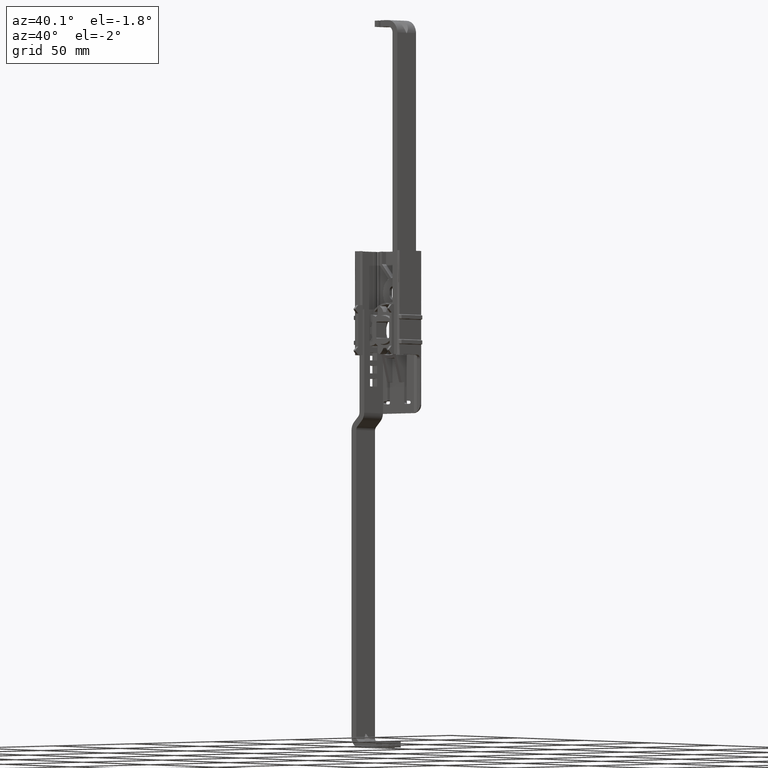
[diagram: clean part render]
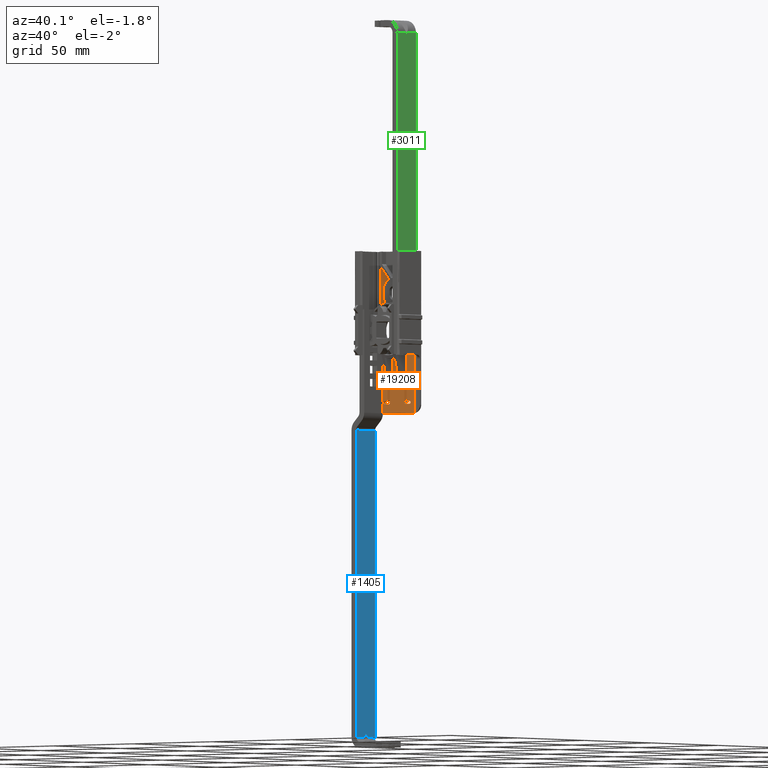
[diagram: same view with three faces highlighted in distinct colors, each labeled with its STEP entity id]
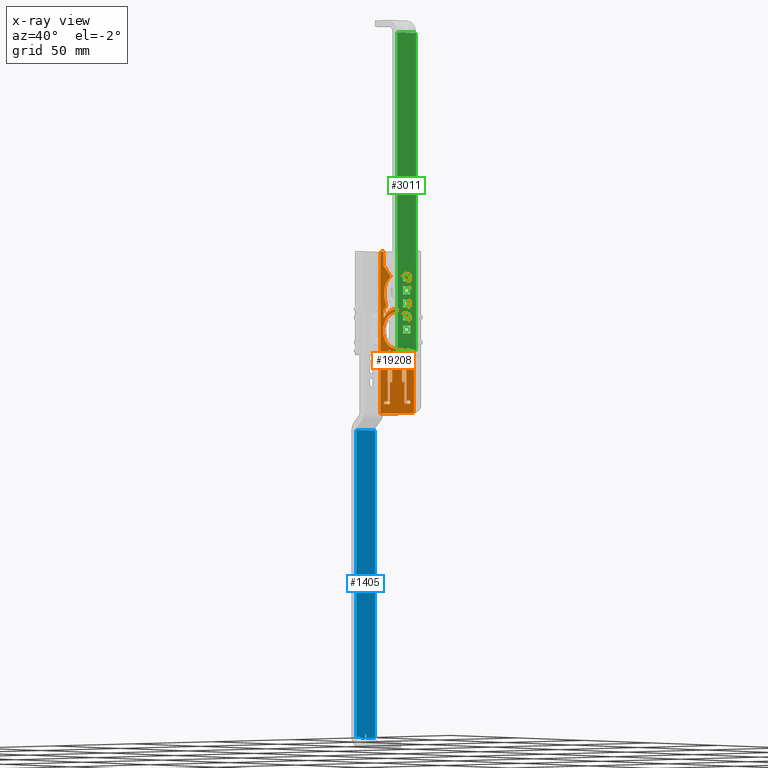
[diagram: x-ray of the same camera — body ghosted, the three highlighted faces saturated]
A machine part, auxiliary view with three faces highlighted in distinct colors.
The next image is the same camera in x-ray (body ghosted, the three faces saturated) — at least one of them is partly hidden behind the body in this view.
Their STEP definitions:

[orange] entity #19208 — the highlighted face is a freeform B-spline surface patch.
#7499=CARTESIAN_POINT('',(-8.883399705875526,7.000000332482159,-0.543332003153308));
#7500=VERTEX_POINT('',#7499);
#7506=CARTESIAN_POINT('',(0.0,7.000000332482160,-8.900000000000000));
#7507=VERTEX_POINT('',#7506);
#7508=CARTESIAN_POINT('',(0.0,7.000000332482160,-8.900000000000000));
#7509=CARTESIAN_POINT('',(-8.372283994239728,7.000000332482161,-8.900000000000000));
#7510=CARTESIAN_POINT('',(-8.883399705875528,7.000000332482161,-0.543332003153305));
#7518=(BOUNDED_CURVE()B_SPLINE_CURVE(2,(#7508,#7509,#7510),.UNSPECIFIED.,.F.,.U.)B_SPLINE_CURVE_WITH_KNOTS((3,3),(0.500000000000000,0.739332962216852),.UNSPECIFIED.)CURVE()GEOMETRIC_REPRESENTATION_ITEM()RATIONAL_B_SPLINE_CURVE((1.0,0.719603993312591,0.976072041619373))REPRESENTATION_ITEM(''));
#7519=EDGE_CURVE('',#7507,#7500,#7518,.T.);
#7521=CARTESIAN_POINT('',(8.883399705875526,7.000000332482159,0.543332003153306));
#7522=VERTEX_POINT('',#7521);
#7523=CARTESIAN_POINT('',(8.883399705875528,7.000000332482161,0.543332003153305));
#7524=CARTESIAN_POINT('',(8.900000000000000,7.000000332482161,0.271919594005793));
#7525=CARTESIAN_POINT('',(8.900000000000000,7.000000332482160,0.0));
#7526=CARTESIAN_POINT('',(8.900000000000000,7.000000332482161,-8.900000000000000));
#7527=CARTESIAN_POINT('',(0.0,7.000000332482160,-8.900000000000000));
#7535=(BOUNDED_CURVE()B_SPLINE_CURVE(2,(#7523,#7524,#7525,#7526,#7527),.UNSPECIFIED.,.F.,.U.)B_SPLINE_CURVE_WITH_KNOTS((3,2,3),(0.239332962216852,0.250000000000000,0.500000000000000),.UNSPECIFIED.)CURVE()GEOMETRIC_REPRESENTATION_ITEM()RATIONAL_B_SPLINE_CURVE((0.976072041619373,0.987502787873957,1.0,0.707106781186548,1.0))REPRESENTATION_ITEM(''));
#7536=EDGE_CURVE('',#7522,#7507,#7535,.T.);
#7580=CARTESIAN_POINT('',(0.0,7.000000332482160,8.900000000000000));
#7581=VERTEX_POINT('',#7580);
#7582=CARTESIAN_POINT('',(0.0,7.000000332482160,8.900000000000000));
#7583=CARTESIAN_POINT('',(8.372283994239728,7.000000332482161,8.900000000000000));
#7584=CARTESIAN_POINT('',(8.883399705875528,7.000000332482161,0.543332003153305));
#7592=(BOUNDED_CURVE()B_SPLINE_CURVE(2,(#7582,#7583,#7584),.UNSPECIFIED.,.F.,.U.)B_SPLINE_CURVE_WITH_KNOTS((3,3),(0.0,0.239332962216852),.UNSPECIFIED.)CURVE()GEOMETRIC_REPRESENTATION_ITEM()RATIONAL_B_SPLINE_CURVE((1.0,0.719603993312591,0.976072041619373))REPRESENTATION_ITEM(''));
#7593=EDGE_CURVE('',#7581,#7522,#7592,.T.);
#7595=CARTESIAN_POINT('',(-8.883399705875529,7.000000332482160,-0.543332003153311));
#7596=CARTESIAN_POINT('',(-8.900000000000000,7.000000332482160,-0.271919594005796));
#7597=CARTESIAN_POINT('',(-8.900000000000000,7.000000332482160,0.0));
#7598=CARTESIAN_POINT('',(-8.900000000000000,7.000000332482161,8.900000000000000));
#7599=CARTESIAN_POINT('',(0.0,7.000000332482160,8.900000000000000));
#7607=(BOUNDED_CURVE()B_SPLINE_CURVE(2,(#7595,#7596,#7597,#7598,#7599),.UNSPECIFIED.,.F.,.U.)B_SPLINE_CURVE_WITH_KNOTS((3,2,3),(0.739332962216852,0.750000000000000,1.0),.UNSPECIFIED.)CURVE()GEOMETRIC_REPRESENTATION_ITEM()RATIONAL_B_SPLINE_CURVE((0.976072041619373,0.987502787873956,1.0,0.707106781186548,1.0))REPRESENTATION_ITEM(''));
#7608=EDGE_CURVE('',#7500,#7581,#7607,.T.);
#8010=CARTESIAN_POINT('',(-8.500000403728791,7.000000332482160,5.992495756123081));
#8011=VERTEX_POINT('',#8010);
#8045=CARTESIAN_POINT('',(8.500000403728802,7.000000332482160,5.992495756123050));
#8046=VERTEX_POINT('',#8045);
#8047=CARTESIAN_POINT('',(-8.500000403728791,7.000000332482160,5.992495756123081));
#8048=CARTESIAN_POINT('',(-7.903130408093733,7.000000332482145,6.839849406914008));
#8049=CARTESIAN_POINT('',(-6.453202528302722,7.000000332482186,8.353626904367136));
#8050=CARTESIAN_POINT('',(-3.660839477028171,7.000000332482141,9.909764618581953));
#8051=CARTESIAN_POINT('',(-0.885212463504522,7.000000332482155,10.477364162254361));
#8052=CARTESIAN_POINT('',(1.610647369218091,7.000000332482172,10.346201468582610));
#8053=CARTESIAN_POINT('',(3.426218055508065,7.000000332482153,9.874650222105172));
#8054=CARTESIAN_POINT('',(5.223586219305586,7.000000332482177,9.058975570708380));
#8055=CARTESIAN_POINT('',(6.938792526715250,7.000000332482101,7.871850391658840));
#8056=CARTESIAN_POINT('',(8.022371457679862,7.000000332482284,6.670266345069343));
#8057=CARTESIAN_POINT('',(8.500000403728802,7.000000332482160,5.992495756123050));
#8058=B_SPLINE_CURVE_WITH_KNOTS('',3,(#8047,#8048,#8049,#8050,#8051,#8052,#8053,#8054,#8055,#8056,#8057),.UNSPECIFIED.,.F.,.U.,(4,1,1,1,1,1,1,1,4),(0.000000736274085,3.109310924812938,6.218780785937293,9.483637908824477,11.504584140355270,13.681250425957860,15.080490926038459,17.412565028662851,19.900022516326821),.UNSPECIFIED.);
#8059=EDGE_CURVE('',#8011,#8046,#8058,.T.);
#9138=CARTESIAN_POINT('',(-8.500000403728791,7.000000332482160,10.099010332132220));
#9139=VERTEX_POINT('',#9138);
#9145=CARTESIAN_POINT('',(-8.500000403728791,7.000000332482160,5.992495756123081));
#9146=CARTESIAN_POINT('',(-8.500000403728791,7.000000332482160,10.099010332132220));
#9147=QUASI_UNIFORM_CURVE('',1,(#9145,#9146),.UNSPECIFIED.,.F.,.U.);
#9148=EDGE_CURVE('',#8011,#9139,#9147,.T.);
#9159=CARTESIAN_POINT('',(8.500000403728812,7.000000332482160,10.099010332132661));
#9160=VERTEX_POINT('',#9159);
#9161=CARTESIAN_POINT('',(8.500000403728812,7.000000332482160,10.099010332132661));
#9162=CARTESIAN_POINT('',(8.500000403728802,7.000000332482160,5.992495756123050));
#9163=QUASI_UNIFORM_CURVE('',1,(#9161,#9162),.UNSPECIFIED.,.F.,.U.);
#9164=EDGE_CURVE('',#9160,#8046,#9163,.T.);
#9197=CARTESIAN_POINT('',(-8.500000403728400,7.000000332482160,31.454046142592400));
#9198=VERTEX_POINT('',#9197);
#9204=CARTESIAN_POINT('',(-3.907428746374550,7.000000332482160,25.980832370689001));
#9205=VERTEX_POINT('',#9204);
#9206=CARTESIAN_POINT('',(-8.500000403728400,7.000000332482160,31.454046142592400));
#9207=CARTESIAN_POINT('',(-3.907428746374550,7.000000332482160,25.980832370689001));
#9208=QUASI_UNIFORM_CURVE('',1,(#9206,#9207),.UNSPECIFIED.,.F.,.U.);
#9209=EDGE_CURVE('',#9198,#9205,#9208,.T.);
#9226=CARTESIAN_POINT('',(-8.500000403728400,7.000000332482160,38.000001804903100));
#9227=VERTEX_POINT('',#9226);
#9228=CARTESIAN_POINT('',(-8.500000403728400,7.000000332482160,38.000001804903100));
#9229=CARTESIAN_POINT('',(-8.500000403728400,7.000000332482160,31.454046142592400));
#9230=QUASI_UNIFORM_CURVE('',1,(#9228,#9229),.UNSPECIFIED.,.F.,.U.);
#9231=EDGE_CURVE('',#9227,#9198,#9230,.T.);
#9322=CARTESIAN_POINT('',(8.500000403728411,7.000000332482160,31.454046142592400));
#9323=VERTEX_POINT('',#9322);
#9324=CARTESIAN_POINT('',(8.500000403728411,7.000000332482160,38.000001804903100));
#9325=VERTEX_POINT('',#9324);
#9326=CARTESIAN_POINT('',(8.500000403728411,7.000000332482160,31.454046142592400));
#9327=CARTESIAN_POINT('',(8.500000403728411,7.000000332482160,38.000001804903100));
#9328=QUASI_UNIFORM_CURVE('',1,(#9326,#9327),.UNSPECIFIED.,.F.,.U.);
#9329=EDGE_CURVE('',#9323,#9325,#9328,.T.);
#9394=CARTESIAN_POINT('',(3.907428746374559,7.000000332482160,25.980832370689001));
#9395=VERTEX_POINT('',#9394);
#9396=CARTESIAN_POINT('',(3.907428746374559,7.000000332482160,25.980832370689001));
#9397=CARTESIAN_POINT('',(8.500000403728411,7.000000332482160,31.454046142592400));
#9398=QUASI_UNIFORM_CURVE('',1,(#9396,#9397),.UNSPECIFIED.,.F.,.U.);
#9399=EDGE_CURVE('',#9395,#9323,#9398,.T.);
#9458=CARTESIAN_POINT('',(-8.000000379979579,7.000000332482160,17.000000807456651));
#9459=VERTEX_POINT('',#9458);
#9472=CARTESIAN_POINT('',(-8.000000379979579,7.000000332482160,19.000000902451450));
#9473=VERTEX_POINT('',#9472);
#9479=CARTESIAN_POINT('',(-8.000000379979579,7.000000332482160,17.000000807456651));
#9480=CARTESIAN_POINT('',(-8.000000379979579,7.000000332482160,19.000000902451450));
#9481=QUASI_UNIFORM_CURVE('',1,(#9479,#9480),.UNSPECIFIED.,.F.,.U.);
#9482=EDGE_CURVE('',#9459,#9473,#9481,.T.);
#9502=CARTESIAN_POINT('',(-8.000000379979579,7.000000332482160,19.000000902451450));
#9503=CARTESIAN_POINT('',(-8.000000379979989,7.000000332482160,23.690069045627766));
#9504=CARTESIAN_POINT('',(-3.907428706193680,7.000000332482160,25.980832298903710));
#9512=(BOUNDED_CURVE()B_SPLINE_CURVE(2,(#9502,#9503,#9504),.UNSPECIFIED.,.F.,.U.)CURVE()GEOMETRIC_REPRESENTATION_ITEM()QUASI_UNIFORM_CURVE()RATIONAL_B_SPLINE_CURVE((1.0,0.862678551105531,1.0))REPRESENTATION_ITEM(''));
#9513=EDGE_CURVE('',#9473,#9205,#9512,.T.);
#9548=CARTESIAN_POINT('',(-7.097949815014121,7.000000332482160,13.309592360791600));
#9549=VERTEX_POINT('',#9548);
#9571=CARTESIAN_POINT('',(-7.097949815014132,7.000000332482160,13.309592360791591));
#9572=CARTESIAN_POINT('',(-8.000000379979719,7.000000332482160,15.044551982000169));
#9573=CARTESIAN_POINT('',(-8.000000379979719,7.000000332482160,17.000000807456601));
#9581=(BOUNDED_CURVE()B_SPLINE_CURVE(2,(#9571,#9572,#9573),.UNSPECIFIED.,.F.,.U.)CURVE()GEOMETRIC_REPRESENTATION_ITEM()QUASI_UNIFORM_CURVE()RATIONAL_B_SPLINE_CURVE((1.0,0.971401998334093,1.0))REPRESENTATION_ITEM(''));
#9582=EDGE_CURVE('',#9549,#9459,#9581,.T.);
#9592=CARTESIAN_POINT('',(8.000000379979520,7.000000332482160,17.000000807456601));
#9593=VERTEX_POINT('',#9592);
#9601=CARTESIAN_POINT('',(8.000000379979710,7.000000332482160,19.000000902451450));
#9602=VERTEX_POINT('',#9601);
#9603=CARTESIAN_POINT('',(8.000000379979710,7.000000332482160,19.000000902451450));
#9604=CARTESIAN_POINT('',(8.000000379979520,7.000000332482160,17.000000807456601));
#9605=QUASI_UNIFORM_CURVE('',1,(#9603,#9604),.UNSPECIFIED.,.F.,.U.);
#9606=EDGE_CURVE('',#9602,#9593,#9605,.T.);
#9637=CARTESIAN_POINT('',(-7.808463576841071,7.000000332482160,10.642739925463600));
#9638=VERTEX_POINT('',#9637);
#9682=CARTESIAN_POINT('',(-7.097949815014125,7.000000332482160,13.309592360791600));
#9683=CARTESIAN_POINT('',(-6.395715602484520,7.000000332482160,11.694425029540891));
#9684=CARTESIAN_POINT('',(-7.808463576841070,7.000000332482160,10.642739925463600));
#9692=(BOUNDED_CURVE()B_SPLINE_CURVE(2,(#9682,#9683,#9684),.UNSPECIFIED.,.F.,.U.)CURVE()GEOMETRIC_REPRESENTATION_ITEM()QUASI_UNIFORM_CURVE()RATIONAL_B_SPLINE_CURVE((1.0,0.783513080592671,1.0))REPRESENTATION_ITEM(''));
#9693=EDGE_CURVE('',#9549,#9638,#9692,.T.);
#9712=CARTESIAN_POINT('',(7.097908734437640,7.000000332482160,13.309497867794960));
#9713=VERTEX_POINT('',#9712);
#9725=CARTESIAN_POINT('',(8.000000379979520,7.000000332482160,17.000000807456601));
#9726=CARTESIAN_POINT('',(8.000003548259221,7.000000332482160,15.044495869587905));
#9727=CARTESIAN_POINT('',(7.097908734437640,7.000000332482160,13.309497867794960));
#9735=(BOUNDED_CURVE()B_SPLINE_CURVE(2,(#9725,#9726,#9727),.UNSPECIFIED.,.F.,.U.)CURVE()GEOMETRIC_REPRESENTATION_ITEM()QUASI_UNIFORM_CURVE()RATIONAL_B_SPLINE_CURVE((1.0,0.971400472923823,1.0))REPRESENTATION_ITEM(''));
#9736=EDGE_CURVE('',#9593,#9713,#9735,.T.);
#9771=CARTESIAN_POINT('',(7.808463576849401,7.000000332482160,10.642739925457480));
#9772=VERTEX_POINT('',#9771);
#9800=CARTESIAN_POINT('',(7.808463576849405,7.000000332482160,10.642739925457480));
#9801=CARTESIAN_POINT('',(6.395782917492917,7.000000332482160,11.694374918546524));
#9802=CARTESIAN_POINT('',(7.097908734437635,7.000000332482160,13.309497867794960));
#9810=(BOUNDED_CURVE()B_SPLINE_CURVE(2,(#9800,#9801,#9802),.UNSPECIFIED.,.F.,.U.)CURVE()GEOMETRIC_REPRESENTATION_ITEM()QUASI_UNIFORM_CURVE()RATIONAL_B_SPLINE_CURVE((1.0,0.783527495207334,1.0))REPRESENTATION_ITEM(''));
#9811=EDGE_CURVE('',#9772,#9713,#9810,.T.);
#16375=CARTESIAN_POINT('',(5.250000249361620,7.000000332482160,-35.500001686159600));
#16376=VERTEX_POINT('',#16375);
#16377=CARTESIAN_POINT('',(4.500000213738530,7.000000332482160,-34.750001650536497));
#16378=VERTEX_POINT('',#16377);
#16379=CARTESIAN_POINT('',(5.250000249361620,7.000000332482160,-35.500001686159592));
#16380=CARTESIAN_POINT('',(4.500000213738531,7.000000332482161,-35.500001686159592));
#16381=CARTESIAN_POINT('',(4.500000213738531,7.000000332482160,-34.750001650536497));
#16389=(BOUNDED_CURVE()B_SPLINE_CURVE(2,(#16379,#16380,#16381),.UNSPECIFIED.,.F.,.U.)CURVE()GEOMETRIC_REPRESENTATION_ITEM()QUASI_UNIFORM_CURVE()RATIONAL_B_SPLINE_CURVE((1.0,0.707106781186548,1.0))REPRESENTATION_ITEM(''));
#16390=EDGE_CURVE('',#16376,#16378,#16389,.T.);
#16427=CARTESIAN_POINT('',(7.750000368105240,7.000000332482160,-35.500001686159600));
#16428=VERTEX_POINT('',#16427);
#16429=CARTESIAN_POINT('',(7.750000368105240,7.000000332482160,-35.500001686159600));
#16430=CARTESIAN_POINT('',(5.250000249361620,7.000000332482160,-35.500001686159600));
#16431=QUASI_UNIFORM_CURVE('',1,(#16429,#16430),.UNSPECIFIED.,.F.,.U.);
#16432=EDGE_CURVE('',#16428,#16376,#16431,.T.);
#16468=CARTESIAN_POINT('',(7.750000368105240,7.000000332482160,-34.000001614913401));
#16469=VERTEX_POINT('',#16468);
#16470=CARTESIAN_POINT('',(7.750000368105240,7.000000332482160,-34.000001614913401));
#16471=CARTESIAN_POINT('',(7.922016314447842,7.000000332482154,-33.999038790105992));
#16472=CARTESIAN_POINT('',(8.227638122453492,7.000000332482187,-34.110172796651213));
#16473=CARTESIAN_POINT('',(8.469254105309748,7.000000332482125,-34.453489819916491));
#16474=CARTESIAN_POINT('',(8.516702017957762,7.000000332482213,-34.775373531171077));
#16475=CARTESIAN_POINT('',(8.456731480601974,7.000000332482117,-35.042640479318123));
#16476=CARTESIAN_POINT('',(8.303492498888382,7.000000332482163,-35.284815640054539));
#16477=CARTESIAN_POINT('',(8.056787609957398,7.000000332482205,-35.458546269050409));
#16478=CARTESIAN_POINT('',(7.848159563706859,7.000000332482136,-35.500071308349128));
#16479=CARTESIAN_POINT('',(7.750000368105240,7.000000332482160,-35.500001686159600));
#16480=B_SPLINE_CURVE_WITH_KNOTS('',3,(#16470,#16471,#16472,#16473,#16474,#16475,#16476,#16477,#16478,#16479),.UNSPECIFIED.,.F.,.U.,(4,1,1,1,1,1,1,4),(0.000005210018345,0.515472367024620,0.920630475908721,1.214844803583242,1.472732354879991,1.730498029057112,2.061916734349529,2.356430949661646),.UNSPECIFIED.);
#16481=EDGE_CURVE('',#16469,#16428,#16480,.T.);
#16512=CARTESIAN_POINT('',(6.500000308733370,7.000000332482160,-34.000001614913351));
#16513=VERTEX_POINT('',#16512);
#16514=CARTESIAN_POINT('',(6.500000308733370,7.000000332482160,-34.000001614913351));
#16515=CARTESIAN_POINT('',(7.750000368105240,7.000000332482160,-34.000001614913401));
#16516=QUASI_UNIFORM_CURVE('',1,(#16514,#16515),.UNSPECIFIED.,.F.,.U.);
#16517=EDGE_CURVE('',#16513,#16469,#16516,.T.);
#16549=CARTESIAN_POINT('',(6.000000284984700,7.000000332482160,-33.500001591164597));
#16550=VERTEX_POINT('',#16549);
#16551=CARTESIAN_POINT('',(6.500000308733370,7.000000332482160,-34.000001614913323));
#16552=CARTESIAN_POINT('',(6.000000284984709,7.000000332482161,-34.000001614913266));
#16553=CARTESIAN_POINT('',(6.000000284984709,7.000000332482160,-33.500001591164597));
#16561=(BOUNDED_CURVE()B_SPLINE_CURVE(2,(#16551,#16552,#16553),.UNSPECIFIED.,.F.,.U.)CURVE()GEOMETRIC_REPRESENTATION_ITEM()QUASI_UNIFORM_CURVE()RATIONAL_B_SPLINE_CURVE((1.0,0.707106781186590,1.0))REPRESENTATION_ITEM(''));
#16562=EDGE_CURVE('',#16513,#16550,#16561,.T.);
#16593=CARTESIAN_POINT('',(6.000000284984640,7.000000332482160,-10.467091783660241));
#16594=VERTEX_POINT('',#16593);
#16595=CARTESIAN_POINT('',(6.000000284984640,7.000000332482160,-10.467091783660241));
#16596=CARTESIAN_POINT('',(6.000000284984700,7.000000332482160,-33.500001591164597));
#16597=QUASI_UNIFORM_CURVE('',1,(#16595,#16596),.UNSPECIFIED.,.F.,.U.);
#16598=EDGE_CURVE('',#16594,#16550,#16597,.T.);
#16630=CARTESIAN_POINT('',(4.568965734255530,7.000000332482160,-9.564756285072079));
#16631=VERTEX_POINT('',#16630);
#16632=CARTESIAN_POINT('',(4.568965734255530,7.000000332482160,-9.564756285072079));
#16633=CARTESIAN_POINT('',(4.758379375183111,7.000000332482167,-9.473352697693594));
#16634=CARTESIAN_POINT('',(5.086301765870926,7.000000332482161,-9.431676168782225));
#16635=CARTESIAN_POINT('',(5.547377747487700,7.000000332482163,-9.595921214829094));
#16636=CARTESIAN_POINT('',(5.895649479159404,7.000000332482166,-9.921496823167578));
#16637=CARTESIAN_POINT('',(6.000608225865745,7.000000332482165,-10.277916936711909));
#16638=CARTESIAN_POINT('',(6.000000284984640,7.000000332482160,-10.467091783660241));
#16639=B_SPLINE_CURVE_WITH_KNOTS('',3,(#16632,#16633,#16634,#16635,#16636,#16637,#16638),.UNSPECIFIED.,.F.,.U.,(4,1,1,1,4),(0.000001669123767,0.630286701944944,0.945396178924051,1.449544952708700,2.016768427385419),.UNSPECIFIED.);
#16640=EDGE_CURVE('',#16631,#16594,#16639,.T.);
#16677=CARTESIAN_POINT('',(-4.568965734254590,7.000000332482160,-9.564756285069009));
#16678=VERTEX_POINT('',#16677);
#16679=CARTESIAN_POINT('',(4.568965734255530,7.000000332482160,-9.564756285072077));
#16680=CARTESIAN_POINT('',(-2.619432E-013,7.000000332482160,-11.747294685280261));
#16681=CARTESIAN_POINT('',(-4.568965734255957,7.000000332482160,-9.564756285071875));
#16689=(BOUNDED_CURVE()B_SPLINE_CURVE(2,(#16679,#16680,#16681),.UNSPECIFIED.,.F.,.U.)CURVE()GEOMETRIC_REPRESENTATION_ITEM()QUASI_UNIFORM_CURVE()RATIONAL_B_SPLINE_CURVE((1.0,0.902335455733064,1.0))REPRESENTATION_ITEM(''));
#16690=EDGE_CURVE('',#16631,#16678,#16689,.T.);
#16730=CARTESIAN_POINT('',(-6.000000284984650,7.000000332482160,-10.467091783660241));
#16731=VERTEX_POINT('',#16730);
#16732=CARTESIAN_POINT('',(-6.000000284984650,7.000000332482160,-10.467091783660241));
#16733=CARTESIAN_POINT('',(-6.000854857528127,7.000000332482158,-10.256770468466540));
#16734=CARTESIAN_POINT('',(-5.897070544832453,7.000000332482167,-9.942905377615888));
#16735=CARTESIAN_POINT('',(-5.580231507648961,7.000000332482153,-9.627920221723151));
#16736=CARTESIAN_POINT('',(-5.289679482080802,7.000000332482185,-9.492314161626322));
#16737=CARTESIAN_POINT('',(-4.932357171926744,7.000000332482110,-9.448692969709152));
#16738=CARTESIAN_POINT('',(-4.701577362800465,7.000000332482203,-9.501177932582749));
#16739=CARTESIAN_POINT('',(-4.568965734254590,7.000000332482160,-9.564756285069009));
#16740=B_SPLINE_CURVE_WITH_KNOTS('',3,(#16732,#16733,#16734,#16735,#16736,#16737,#16738,#16739),.UNSPECIFIED.,.F.,.U.,(4,1,1,1,1,4),(0.000001669124081,0.630286701945362,0.945396178924532,1.323443453017023,1.575609053781988,2.016768427386025),.UNSPECIFIED.);
#16741=EDGE_CURVE('',#16731,#16678,#16740,.T.);
#16770=CARTESIAN_POINT('',(-6.000000284984760,7.000000332482160,-33.500001591164647));
#16771=VERTEX_POINT('',#16770);
#16772=CARTESIAN_POINT('',(-6.000000284984760,7.000000332482160,-33.500001591164647));
#16773=CARTESIAN_POINT('',(-6.000000284984650,7.000000332482160,-10.467091783660241));
#16774=QUASI_UNIFORM_CURVE('',1,(#16772,#16773),.UNSPECIFIED.,.F.,.U.);
#16775=EDGE_CURVE('',#16771,#16731,#16774,.T.);
#16807=CARTESIAN_POINT('',(-6.500000308733500,7.000000332482160,-34.000001614913401));
#16808=VERTEX_POINT('',#16807);
#16809=CARTESIAN_POINT('',(-6.000000284984760,7.000000332482160,-33.500001591164647));
#16810=CARTESIAN_POINT('',(-6.000000284984815,7.000000332482159,-34.000001614913330));
#16811=CARTESIAN_POINT('',(-6.500000308733500,7.000000332482160,-34.000001614913337));
#16819=(BOUNDED_CURVE()B_SPLINE_CURVE(2,(#16809,#16810,#16811),.UNSPECIFIED.,.F.,.U.)CURVE()GEOMETRIC_REPRESENTATION_ITEM()QUASI_UNIFORM_CURVE()RATIONAL_B_SPLINE_CURVE((1.0,0.707106781186587,1.0))REPRESENTATION_ITEM(''));
#16820=EDGE_CURVE('',#16771,#16808,#16819,.T.);
#16851=CARTESIAN_POINT('',(-7.750000368105250,7.000000332482160,-34.000001614913401));
#16852=VERTEX_POINT('',#16851);
#16853=CARTESIAN_POINT('',(-7.750000368105250,7.000000332482160,-34.000001614913401));
#16854=CARTESIAN_POINT('',(-6.500000308733500,7.000000332482160,-34.000001614913401));
#16855=QUASI_UNIFORM_CURVE('',1,(#16853,#16854),.UNSPECIFIED.,.F.,.U.);
#16856=EDGE_CURVE('',#16852,#16808,#16855,.T.);
#16892=CARTESIAN_POINT('',(-7.750000368105250,7.000000332482160,-35.500001686159500));
#16893=VERTEX_POINT('',#16892);
#16894=CARTESIAN_POINT('',(-7.750000368105250,7.000000332482160,-35.500001686159500));
#16895=CARTESIAN_POINT('',(-7.835868854343746,7.000000332482159,-35.500030532484139));
#16896=CARTESIAN_POINT('',(-8.032285726939000,7.000000332482165,-35.466023082563638));
#16897=CARTESIAN_POINT('',(-8.265955152901011,7.000000332482149,-35.318051071603158));
#16898=CARTESIAN_POINT('',(-8.428499012983018,7.000000332482194,-35.098694144594283));
#16899=CARTESIAN_POINT('',(-8.510528339988380,7.000000332482106,-34.850437786143637));
#16900=CARTESIAN_POINT('',(-8.494314271925706,7.000000332482195,-34.512912499910883));
#16901=CARTESIAN_POINT('',(-8.264168445400603,7.000000332482078,-34.128205609246329));
#16902=CARTESIAN_POINT('',(-7.934299682606909,7.000000332482236,-33.998788224041107));
#16903=CARTESIAN_POINT('',(-7.750000368105250,7.000000332482160,-34.000001614913401));
#16904=B_SPLINE_CURVE_WITH_KNOTS('',3,(#16894,#16895,#16896,#16897,#16898,#16899,#16900,#16901,#16902,#16903),.UNSPECIFIED.,.F.,.U.,(4,1,1,1,1,1,1,4),(0.000005210031079,0.257675033080544,0.589123873622595,0.810107606893054,1.067785929255103,1.362222555622689,1.804151059801060,2.356430949661402),.UNSPECIFIED.);
#16905=EDGE_CURVE('',#16893,#16852,#16904,.T.);
#16936=CARTESIAN_POINT('',(-5.250000249361570,7.000000332482160,-35.500001686159550));
#16937=VERTEX_POINT('',#16936);
#16938=CARTESIAN_POINT('',(-5.250000249361570,7.000000332482160,-35.500001686159550));
#16939=CARTESIAN_POINT('',(-7.750000368105250,7.000000332482160,-35.500001686159500));
#16940=QUASI_UNIFORM_CURVE('',1,(#16938,#16939),.UNSPECIFIED.,.F.,.U.);
#16941=EDGE_CURVE('',#16937,#16893,#16940,.T.);
#16973=CARTESIAN_POINT('',(-4.500000213738590,7.000000332482160,-34.750001650536497));
#16974=VERTEX_POINT('',#16973);
#16975=CARTESIAN_POINT('',(-4.500000213738502,7.000000332482160,-34.750001650536497));
#16976=CARTESIAN_POINT('',(-4.500000213738503,7.000000332482162,-35.500001686159571));
#16977=CARTESIAN_POINT('',(-5.250000249361570,7.000000332482160,-35.500001686159557));
#16985=(BOUNDED_CURVE()B_SPLINE_CURVE(2,(#16975,#16976,#16977),.UNSPECIFIED.,.F.,.U.)CURVE()GEOMETRIC_REPRESENTATION_ITEM()QUASI_UNIFORM_CURVE()RATIONAL_B_SPLINE_CURVE((1.0,0.707106781186547,1.0))REPRESENTATION_ITEM(''));
#16986=EDGE_CURVE('',#16974,#16937,#16985,.T.);
#17375=CARTESIAN_POINT('',(10.600000503471080,7.000000332482160,-39.954745911056349));
#17376=VERTEX_POINT('',#17375);
#17390=CARTESIAN_POINT('',(10.000000664964400,7.000000332482160,-40.000001899898102));
#17391=VERTEX_POINT('',#17390);
#17392=CARTESIAN_POINT('',(10.600000503471080,7.000000332482160,-39.954745911056342));
#17393=CARTESIAN_POINT('',(10.301707338448825,7.000000332482160,-40.000001899898095));
#17394=CARTESIAN_POINT('',(10.000000664964400,7.000000332482160,-40.000001899898102));
#17402=(BOUNDED_CURVE()B_SPLINE_CURVE(2,(#17392,#17393,#17394),.UNSPECIFIED.,.F.,.U.)CURVE()GEOMETRIC_REPRESENTATION_ITEM()QUASI_UNIFORM_CURVE()RATIONAL_B_SPLINE_CURVE((1.0,0.997167489138500,1.0))REPRESENTATION_ITEM(''));
#17403=EDGE_CURVE('',#17376,#17391,#17402,.T.);
#17428=CARTESIAN_POINT('',(-10.000000664964301,7.000000332482160,-40.000001899898102));
#17429=VERTEX_POINT('',#17428);
#17435=CARTESIAN_POINT('',(-10.600000503472581,7.000000332482160,-39.954745911055937));
#17436=VERTEX_POINT('',#17435);
#17437=CARTESIAN_POINT('',(-10.000000664964301,7.000000332482160,-40.000001899898102));
#17438=CARTESIAN_POINT('',(-10.301707338449553,7.000000332482160,-40.000001899898095));
#17439=CARTESIAN_POINT('',(-10.600000503472600,7.000000332482160,-39.954745911056087));
#17447=(BOUNDED_CURVE()B_SPLINE_CURVE(2,(#17437,#17438,#17439),.UNSPECIFIED.,.F.,.U.)CURVE()GEOMETRIC_REPRESENTATION_ITEM()QUASI_UNIFORM_CURVE()RATIONAL_B_SPLINE_CURVE((1.0,0.997167489138484,1.0))REPRESENTATION_ITEM(''));
#17448=EDGE_CURVE('',#17429,#17436,#17447,.T.);
#17653=CARTESIAN_POINT('',(-10.600000503472559,7.000000332482160,38.000001804903150));
#17654=VERTEX_POINT('',#17653);
#17660=CARTESIAN_POINT('',(-10.600000503472559,7.000000332482160,38.000001804903150));
#17661=CARTESIAN_POINT('',(-8.500000403728400,7.000000332482160,38.000001804903100));
#17662=QUASI_UNIFORM_CURVE('',1,(#17660,#17661),.UNSPECIFIED.,.F.,.U.);
#17663=EDGE_CURVE('',#17654,#9227,#17662,.T.);
#17684=CARTESIAN_POINT('',(10.600000503471099,7.000000332482160,38.000001804903150));
#17685=VERTEX_POINT('',#17684);
#17686=CARTESIAN_POINT('',(8.500000403728411,7.000000332482160,38.000001804903100));
#17687=CARTESIAN_POINT('',(10.600000503471099,7.000000332482160,38.000001804903150));
#17688=QUASI_UNIFORM_CURVE('',1,(#17686,#17687),.UNSPECIFIED.,.F.,.U.);
#17689=EDGE_CURVE('',#9325,#17685,#17688,.T.);
#17810=CARTESIAN_POINT('',(-10.000000664964301,7.000000332482160,-40.000001899898102));
#17811=CARTESIAN_POINT('',(10.000000664964400,7.000000332482160,-40.000001899898102));
#17812=QUASI_UNIFORM_CURVE('',1,(#17810,#17811),.UNSPECIFIED.,.F.,.U.);
#17813=EDGE_CURVE('',#17429,#17391,#17812,.T.);
#17853=CARTESIAN_POINT('',(-10.600000503472581,7.000000332482160,-39.954745911055937));
#17854=CARTESIAN_POINT('',(-10.600000503472559,7.000000332482160,38.000001804903150));
#17855=QUASI_UNIFORM_CURVE('',1,(#17853,#17854),.UNSPECIFIED.,.F.,.U.);
#17856=EDGE_CURVE('',#17436,#17654,#17855,.T.);
#17879=CARTESIAN_POINT('',(10.600000503471080,7.000000332482160,-39.954745911056349));
#17880=CARTESIAN_POINT('',(10.600000503471099,7.000000332482160,38.000001804903150));
#17881=QUASI_UNIFORM_CURVE('',1,(#17879,#17880),.UNSPECIFIED.,.F.,.U.);
#17882=EDGE_CURVE('',#17376,#17685,#17881,.T.);
#18494=CARTESIAN_POINT('',(-4.500000213738590,7.000000332482160,-25.000001187436350));
#18495=VERTEX_POINT('',#18494);
#18501=CARTESIAN_POINT('',(-3.000000142492300,7.000000332482160,-25.000001187436350));
#18502=VERTEX_POINT('',#18501);
#18503=CARTESIAN_POINT('',(-3.000000142492300,7.000000332482160,-25.000001187436350));
#18504=CARTESIAN_POINT('',(-4.500000213738590,7.000000332482160,-25.000001187436350));
#18505=QUASI_UNIFORM_CURVE('',1,(#18503,#18504),.UNSPECIFIED.,.F.,.U.);
#18506=EDGE_CURVE('',#18502,#18495,#18505,.T.);
#18523=CARTESIAN_POINT('',(-3.000000142491845,7.000000332482160,-13.264992149085719));
#18524=VERTEX_POINT('',#18523);
#18525=CARTESIAN_POINT('',(-3.000000142491845,7.000000332482160,-13.264992149085719));
#18526=CARTESIAN_POINT('',(-3.000000142492300,7.000000332482160,-25.000001187436350));
#18527=QUASI_UNIFORM_CURVE('',1,(#18525,#18526),.UNSPECIFIED.,.F.,.U.);
#18528=EDGE_CURVE('',#18524,#18502,#18527,.T.);
#18554=CARTESIAN_POINT('',(3.000000142492410,7.000000332482160,-13.264992149085600));
#18555=VERTEX_POINT('',#18554);
#18556=CARTESIAN_POINT('',(3.000000142492414,7.000000332482160,-13.264992149085600));
#18557=CARTESIAN_POINT('',(3.001072E-013,7.000000332482160,-13.943470636844754));
#18558=CARTESIAN_POINT('',(-3.000000142491841,7.000000332482160,-13.264992149085730));
#18566=(BOUNDED_CURVE()B_SPLINE_CURVE(2,(#18556,#18557,#18558),.UNSPECIFIED.,.F.,.U.)CURVE()GEOMETRIC_REPRESENTATION_ITEM()QUASI_UNIFORM_CURVE()RATIONAL_B_SPLINE_CURVE((1.0,0.975366965669773,1.0))REPRESENTATION_ITEM(''));
#18567=EDGE_CURVE('',#18555,#18524,#18566,.T.);
#18584=CARTESIAN_POINT('',(3.000000142492410,7.000000332482160,-25.000001187436350));
#18585=VERTEX_POINT('',#18584);
#18586=CARTESIAN_POINT('',(3.000000142492410,7.000000332482160,-25.000001187436350));
#18587=CARTESIAN_POINT('',(3.000000142492410,7.000000332482160,-13.264992149085600));
#18588=QUASI_UNIFORM_CURVE('',1,(#18586,#18587),.UNSPECIFIED.,.F.,.U.);
#18589=EDGE_CURVE('',#18585,#18555,#18588,.T.);
#18606=CARTESIAN_POINT('',(4.500000213738599,7.000000332482160,-25.000001187436350));
#18607=VERTEX_POINT('',#18606);
#18608=CARTESIAN_POINT('',(4.500000213738599,7.000000332482160,-25.000001187436350));
#18609=CARTESIAN_POINT('',(3.000000142492410,7.000000332482160,-25.000001187436350));
#18610=QUASI_UNIFORM_CURVE('',1,(#18608,#18609),.UNSPECIFIED.,.F.,.U.);
#18611=EDGE_CURVE('',#18607,#18585,#18610,.T.);
#18640=CARTESIAN_POINT('',(-4.500000213738590,7.000000332482160,-25.000001187436350));
#18641=CARTESIAN_POINT('',(-4.500000213738590,7.000000332482160,-34.750001650536497));
#18642=QUASI_UNIFORM_CURVE('',1,(#18640,#18641),.UNSPECIFIED.,.F.,.U.);
#18643=EDGE_CURVE('',#18495,#16974,#18642,.T.);
#18766=CARTESIAN_POINT('',(4.500000213738530,7.000000332482160,-34.750001650536497));
#18767=CARTESIAN_POINT('',(4.500000213738599,7.000000332482160,-25.000001187436350));
#18768=QUASI_UNIFORM_CURVE('',1,(#18766,#18767),.UNSPECIFIED.,.F.,.U.);
#18769=EDGE_CURVE('',#16378,#18607,#18768,.T.);
#19107=CARTESIAN_POINT('',(3.907428746374559,7.000000332482160,25.980832370689001));
#19108=CARTESIAN_POINT('',(8.000000379979992,7.000000332482160,23.690069045627766));
#19109=CARTESIAN_POINT('',(8.000000379979992,7.000000332482160,19.000000902451450));
#19117=(BOUNDED_CURVE()B_SPLINE_CURVE(2,(#19107,#19108,#19109),.UNSPECIFIED.,.F.,.U.)CURVE()GEOMETRIC_REPRESENTATION_ITEM()QUASI_UNIFORM_CURVE()RATIONAL_B_SPLINE_CURVE((1.0,0.862678551105531,1.0))REPRESENTATION_ITEM(''));
#19118=EDGE_CURVE('',#9395,#9602,#19117,.T.);
#19123=CARTESIAN_POINT('',(-11.658940512679701,7.000000332482160,-43.896101933773792));
#19124=CARTESIAN_POINT('',(-11.658940512679701,7.000000332482160,41.896103930901951));
#19125=CARTESIAN_POINT('',(11.658941081306560,7.000000332482160,-43.896101933773792));
#19126=CARTESIAN_POINT('',(11.658941081306560,7.000000332482160,41.896103930901951));
#19127=B_SPLINE_SURFACE_WITH_KNOTS('',1,1,((#19123,#19125),(#19124,#19126)),.UNSPECIFIED.,.F.,.F.,.U.,(2,2),(2,2),(0.0,85.792205864675736),(0.0,23.317881593986261),.UNSPECIFIED.);
#19128=ORIENTED_EDGE('',*,*,#8059,.F.);
#19129=ORIENTED_EDGE('',*,*,#9148,.T.);
#19130=CARTESIAN_POINT('',(-8.500000403728791,7.000000332482160,10.099010332132220));
#19131=CARTESIAN_POINT('',(-8.163296052695104,7.000000332482160,10.382403162281326));
#19132=CARTESIAN_POINT('',(-7.808463576841099,7.000000332482160,10.642739925463641));
#19140=(BOUNDED_CURVE()B_SPLINE_CURVE(2,(#19130,#19131,#19132),.UNSPECIFIED.,.F.,.U.)CURVE()GEOMETRIC_REPRESENTATION_ITEM()QUASI_UNIFORM_CURVE()RATIONAL_B_SPLINE_CURVE((1.0,0.999444674074972,1.0))REPRESENTATION_ITEM(''));
#19141=EDGE_CURVE('',#9139,#9638,#19140,.T.);
#19142=ORIENTED_EDGE('',*,*,#19141,.T.);
#19143=ORIENTED_EDGE('',*,*,#9693,.F.);
#19144=ORIENTED_EDGE('',*,*,#9582,.T.);
#19145=ORIENTED_EDGE('',*,*,#9482,.T.);
#19146=ORIENTED_EDGE('',*,*,#9513,.T.);
#19147=ORIENTED_EDGE('',*,*,#9209,.F.);
#19148=ORIENTED_EDGE('',*,*,#9231,.F.);
#19149=ORIENTED_EDGE('',*,*,#17663,.F.);
#19150=ORIENTED_EDGE('',*,*,#17856,.F.);
#19151=ORIENTED_EDGE('',*,*,#17448,.F.);
#19152=ORIENTED_EDGE('',*,*,#17813,.T.);
#19153=ORIENTED_EDGE('',*,*,#17403,.F.);
#19154=ORIENTED_EDGE('',*,*,#17882,.T.);
#19155=ORIENTED_EDGE('',*,*,#17689,.F.);
#19156=ORIENTED_EDGE('',*,*,#9329,.F.);
#19157=ORIENTED_EDGE('',*,*,#9399,.F.);
#19158=ORIENTED_EDGE('',*,*,#19118,.T.);
#19159=ORIENTED_EDGE('',*,*,#9606,.T.);
#19160=ORIENTED_EDGE('',*,*,#9736,.T.);
#19161=ORIENTED_EDGE('',*,*,#9811,.F.);
#19162=CARTESIAN_POINT('',(7.808463576849401,7.000000332482160,10.642739925457480));
#19163=CARTESIAN_POINT('',(8.163296052698945,7.000000332482160,10.382403162278075));
#19164=CARTESIAN_POINT('',(8.500000403728800,7.000000332482160,10.099010332132650));
#19172=(BOUNDED_CURVE()B_SPLINE_CURVE(2,(#19162,#19163,#19164),.UNSPECIFIED.,.F.,.U.)CURVE()GEOMETRIC_REPRESENTATION_ITEM()QUASI_UNIFORM_CURVE()RATIONAL_B_SPLINE_CURVE((1.0,0.999444674074986,1.0))REPRESENTATION_ITEM(''));
#19173=EDGE_CURVE('',#9772,#9160,#19172,.T.);
#19174=ORIENTED_EDGE('',*,*,#19173,.T.);
#19175=ORIENTED_EDGE('',*,*,#9164,.T.);
#19176=EDGE_LOOP('',(#19128,#19129,#19142,#19143,#19144,#19145,#19146,#19147,#19148,#19149,#19150,#19151,#19152,#19153,#19154,#19155,#19156,#19157,#19158,#19159,#19160,#19161,#19174,#19175));
#19177=FACE_OUTER_BOUND('',#19176,.T.);
#19178=ORIENTED_EDGE('',*,*,#18611,.T.);
#19179=ORIENTED_EDGE('',*,*,#18589,.T.);
#19180=ORIENTED_EDGE('',*,*,#18567,.T.);
#19181=ORIENTED_EDGE('',*,*,#18528,.T.);
#19182=ORIENTED_EDGE('',*,*,#18506,.T.);
#19183=ORIENTED_EDGE('',*,*,#18643,.T.);
#19184=ORIENTED_EDGE('',*,*,#16986,.T.);
#19185=ORIENTED_EDGE('',*,*,#16941,.T.);
#19186=ORIENTED_EDGE('',*,*,#16905,.T.);
#19187=ORIENTED_EDGE('',*,*,#16856,.T.);
#19188=ORIENTED_EDGE('',*,*,#16820,.F.);
#19189=ORIENTED_EDGE('',*,*,#16775,.T.);
#19190=ORIENTED_EDGE('',*,*,#16741,.T.);
#19191=ORIENTED_EDGE('',*,*,#16690,.F.);
#19192=ORIENTED_EDGE('',*,*,#16640,.T.);
#19193=ORIENTED_EDGE('',*,*,#16598,.T.);
#19194=ORIENTED_EDGE('',*,*,#16562,.F.);
#19195=ORIENTED_EDGE('',*,*,#16517,.T.);
#19196=ORIENTED_EDGE('',*,*,#16481,.T.);
#19197=ORIENTED_EDGE('',*,*,#16432,.T.);
#19198=ORIENTED_EDGE('',*,*,#16390,.T.);
#19199=ORIENTED_EDGE('',*,*,#18769,.T.);
#19200=EDGE_LOOP('',(#19178,#19179,#19180,#19181,#19182,#19183,#19184,#19185,#19186,#19187,#19188,#19189,#19190,#19191,#19192,#19193,#19194,#19195,#19196,#19197,#19198,#19199));
#19201=FACE_BOUND('',#19200,.T.);
#19202=ORIENTED_EDGE('',*,*,#7519,.T.);
#19203=ORIENTED_EDGE('',*,*,#7608,.T.);
#19204=ORIENTED_EDGE('',*,*,#7593,.T.);
#19205=ORIENTED_EDGE('',*,*,#7536,.T.);
#19206=EDGE_LOOP('',(#19202,#19203,#19204,#19205));
#19207=FACE_BOUND('',#19206,.T.);
#19208=ADVANCED_FACE('',(#19177,#19201,#19207),#19127,.F.);

[blue] entity #1405 — the highlighted face is a freeform B-spline surface patch.
#374=CARTESIAN_POINT('',(-13.900000278744800,4.893622E-014,-193.993531929616490));
#375=VERTEX_POINT('',#374);
#381=CARTESIAN_POINT('',(-13.900000278744720,-0.819142054959629,-196.000011991122990));
#382=VERTEX_POINT('',#381);
#383=CARTESIAN_POINT('',(-13.900000278744720,-0.819142054959629,-196.000011991122990));
#384=CARTESIAN_POINT('',(-13.900000278744800,4.893622E-014,-193.993531929616490));
#385=QUASI_UNIFORM_CURVE('',1,(#383,#384),.UNSPECIFIED.,.F.,.U.);
#386=EDGE_CURVE('',#382,#375,#385,.T.);
#421=CARTESIAN_POINT('',(-13.900000278744720,0.819142054959796,-196.000011991122990));
#422=VERTEX_POINT('',#421);
#434=CARTESIAN_POINT('',(-13.900000278744720,0.819142054959796,-196.000011991122990));
#435=CARTESIAN_POINT('',(-13.900000278744800,4.893622E-014,-193.993531929616490));
#436=QUASI_UNIFORM_CURVE('',1,(#434,#435),.UNSPECIFIED.,.F.,.U.);
#437=EDGE_CURVE('',#422,#375,#436,.T.);
#1016=CARTESIAN_POINT('',(-13.900000278744621,-7.000000332482050,-196.000011991122990));
#1017=VERTEX_POINT('',#1016);
#1028=CARTESIAN_POINT('',(-13.900000278744800,-7.000000332482050,-48.035538869178403));
#1029=VERTEX_POINT('',#1028);
#1030=CARTESIAN_POINT('',(-13.900000278744621,-7.000000332482050,-196.000011991122990));
#1031=CARTESIAN_POINT('',(-13.900000278744800,-7.000000332482050,-48.035538869178403));
#1032=QUASI_UNIFORM_CURVE('',1,(#1030,#1031),.UNSPECIFIED.,.F.,.U.);
#1033=EDGE_CURVE('',#1017,#1029,#1032,.T.);
#1270=CARTESIAN_POINT('',(-13.900000278744800,7.000000332482160,-48.035538869178403));
#1271=VERTEX_POINT('',#1270);
#1285=CARTESIAN_POINT('',(-13.900000278744621,7.000000332482160,-196.000011991122990));
#1286=VERTEX_POINT('',#1285);
#1287=CARTESIAN_POINT('',(-13.900000278744621,7.000000332482160,-196.000011991122990));
#1288=CARTESIAN_POINT('',(-13.900000278744800,7.000000332482160,-48.035538869178403));
#1289=QUASI_UNIFORM_CURVE('',1,(#1287,#1288),.UNSPECIFIED.,.F.,.U.);
#1290=EDGE_CURVE('',#1286,#1271,#1289,.T.);
#1373=CARTESIAN_POINT('',(-13.900000278744800,7.000000332482160,-48.035538869178403));
#1374=CARTESIAN_POINT('',(-13.900000278744800,-7.000000332482050,-48.035538869178403));
#1375=QUASI_UNIFORM_CURVE('',1,(#1373,#1374),.UNSPECIFIED.,.F.,.U.);
#1376=EDGE_CURVE('',#1271,#1029,#1375,.T.);
#1383=CARTESIAN_POINT('',(-13.900000278744800,7.699300338562406,-40.644713723521122));
#1384=CARTESIAN_POINT('',(-13.900000278744800,7.699300338562406,-203.390841105496800));
#1385=CARTESIAN_POINT('',(-13.900000278744800,-7.699300714071577,-40.644713723521122));
#1386=CARTESIAN_POINT('',(-13.900000278744800,-7.699300714071577,-203.390841105496800));
#1387=B_SPLINE_SURFACE_WITH_KNOTS('',1,1,((#1383,#1385),(#1384,#1386)),.UNSPECIFIED.,.F.,.F.,.U.,(2,2),(2,2),(0.0,162.746127381975610),(0.0,15.398601052633980),.UNSPECIFIED.);
#1388=CARTESIAN_POINT('',(-13.900000278744621,7.000000332482160,-196.000011991122990));
#1389=CARTESIAN_POINT('',(-13.900000278744720,0.819142054959796,-196.000011991122990));
#1390=QUASI_UNIFORM_CURVE('',1,(#1388,#1389),.UNSPECIFIED.,.F.,.U.);
#1391=EDGE_CURVE('',#1286,#422,#1390,.T.);
#1392=ORIENTED_EDGE('',*,*,#1391,.F.);
#1393=ORIENTED_EDGE('',*,*,#1290,.T.);
#1394=ORIENTED_EDGE('',*,*,#1376,.T.);
#1395=ORIENTED_EDGE('',*,*,#1033,.F.);
#1396=CARTESIAN_POINT('',(-13.900000278744720,-0.819142054959629,-196.000011991122990));
#1397=CARTESIAN_POINT('',(-13.900000278744621,-7.000000332482050,-196.000011991122990));
#1398=QUASI_UNIFORM_CURVE('',1,(#1396,#1397),.UNSPECIFIED.,.F.,.U.);
#1399=EDGE_CURVE('',#382,#1017,#1398,.T.);
#1400=ORIENTED_EDGE('',*,*,#1399,.F.);
#1401=ORIENTED_EDGE('',*,*,#386,.T.);
#1402=ORIENTED_EDGE('',*,*,#437,.F.);
#1403=EDGE_LOOP('',(#1392,#1393,#1394,#1395,#1400,#1401,#1402));
#1404=FACE_OUTER_BOUND('',#1403,.T.);
#1405=ADVANCED_FACE('',(#1404),#1387,.F.);

[green] entity #3011 — the highlighted face is a freeform B-spline surface patch.
#1815=CARTESIAN_POINT('',(11.900000183749921,0.242641042651259,143.000004395497600));
#1816=VERTEX_POINT('',#1815);
#1841=CARTESIAN_POINT('',(11.900000183749899,4.857226E-014,142.656858142191990));
#1842=VERTEX_POINT('',#1841);
#1848=CARTESIAN_POINT('',(11.900000183749899,4.857226E-014,142.656858142191990));
#1849=CARTESIAN_POINT('',(11.900000183749921,0.242641042651259,143.000004395497600));
#1850=QUASI_UNIFORM_CURVE('',1,(#1848,#1849),.UNSPECIFIED.,.F.,.U.);
#1851=EDGE_CURVE('',#1842,#1816,#1850,.T.);
#1868=CARTESIAN_POINT('',(11.900000183749921,-0.242641042651259,143.000004395497600));
#1869=VERTEX_POINT('',#1868);
#1885=CARTESIAN_POINT('',(11.900000183749899,4.857226E-014,142.656858142191990));
#1886=CARTESIAN_POINT('',(11.900000183749921,-0.242641042651259,143.000004395497600));
#1887=QUASI_UNIFORM_CURVE('',1,(#1885,#1886),.UNSPECIFIED.,.F.,.U.);
#1888=EDGE_CURVE('',#1842,#1869,#1887,.T.);
#2281=CARTESIAN_POINT('',(11.900000183749921,-2.700000000000000,23.220002576783401));
#2282=VERTEX_POINT('',#2281);
#2288=CARTESIAN_POINT('',(11.900000183749899,2.699999999999925,23.220002576783401));
#2289=VERTEX_POINT('',#2288);
#2290=CARTESIAN_POINT('',(11.900000183749899,2.699999999999925,23.220002576783401));
#2291=CARTESIAN_POINT('',(11.900000183749921,-2.700000000000000,23.220002576783401));
#2292=QUASI_UNIFORM_CURVE('',1,(#2290,#2291),.UNSPECIFIED.,.F.,.U.);
#2293=EDGE_CURVE('',#2289,#2282,#2292,.T.);
#2316=CARTESIAN_POINT('',(11.900000183749921,2.700000000000000,27.020002576783401));
#2317=VERTEX_POINT('',#2316);
#2318=CARTESIAN_POINT('',(11.900000183749921,2.700000000000000,27.020002576783401));
#2319=CARTESIAN_POINT('',(11.900000183749899,2.699999999999925,23.220002576783401));
#2320=QUASI_UNIFORM_CURVE('',1,(#2318,#2319),.UNSPECIFIED.,.F.,.U.);
#2321=EDGE_CURVE('',#2317,#2289,#2320,.T.);
#2344=CARTESIAN_POINT('',(11.900000183749921,-2.700000000000000,27.020002576783401));
#2345=VERTEX_POINT('',#2344);
#2346=CARTESIAN_POINT('',(11.900000183749921,-2.700000000000000,27.020002576783401));
#2347=CARTESIAN_POINT('',(11.900000183749921,2.700000000000000,27.020002576783401));
#2348=QUASI_UNIFORM_CURVE('',1,(#2346,#2347),.UNSPECIFIED.,.F.,.U.);
#2349=EDGE_CURVE('',#2345,#2317,#2348,.T.);
#2370=CARTESIAN_POINT('',(11.900000183749921,-2.700000000000000,23.220002576783401));
#2371=CARTESIAN_POINT('',(11.900000183749921,-2.700000000000000,27.020002576783401));
#2372=QUASI_UNIFORM_CURVE('',1,(#2370,#2371),.UNSPECIFIED.,.F.,.U.);
#2373=EDGE_CURVE('',#2282,#2345,#2372,.T.);
#2393=CARTESIAN_POINT('',(11.900000183749921,2.700000000000000,-1.899997423216600));
#2394=VERTEX_POINT('',#2393);
#2400=CARTESIAN_POINT('',(11.900000183749899,2.700000000000050,1.900002576783410));
#2401=VERTEX_POINT('',#2400);
#2402=CARTESIAN_POINT('',(11.900000183749899,2.700000000000050,1.900002576783410));
#2403=CARTESIAN_POINT('',(11.900000183749921,2.700000000000000,-1.899997423216600));
#2404=QUASI_UNIFORM_CURVE('',1,(#2402,#2403),.UNSPECIFIED.,.F.,.U.);
#2405=EDGE_CURVE('',#2401,#2394,#2404,.T.);
#2428=CARTESIAN_POINT('',(11.900000183749921,-2.700000000000000,1.900002576783400));
#2429=VERTEX_POINT('',#2428);
#2430=CARTESIAN_POINT('',(11.900000183749921,-2.700000000000000,1.900002576783400));
#2431=CARTESIAN_POINT('',(11.900000183749899,2.700000000000050,1.900002576783410));
#2432=QUASI_UNIFORM_CURVE('',1,(#2430,#2431),.UNSPECIFIED.,.F.,.U.);
#2433=EDGE_CURVE('',#2429,#2401,#2432,.T.);
#2456=CARTESIAN_POINT('',(11.900000183749921,-2.700000000000000,-1.899997423216600));
#2457=VERTEX_POINT('',#2456);
#2458=CARTESIAN_POINT('',(11.900000183749921,-2.700000000000000,-1.899997423216600));
#2459=CARTESIAN_POINT('',(11.900000183749921,-2.700000000000000,1.900002576783400));
#2460=QUASI_UNIFORM_CURVE('',1,(#2458,#2459),.UNSPECIFIED.,.F.,.U.);
#2461=EDGE_CURVE('',#2457,#2429,#2460,.T.);
#2482=CARTESIAN_POINT('',(11.900000183749921,2.700000000000000,-1.899997423216600));
#2483=CARTESIAN_POINT('',(11.900000183749921,-2.700000000000000,-1.899997423216600));
#2484=QUASI_UNIFORM_CURVE('',1,(#2482,#2483),.UNSPECIFIED.,.F.,.U.);
#2485=EDGE_CURVE('',#2394,#2457,#2484,.T.);
#2505=CARTESIAN_POINT('',(11.900000183749921,-2.700000000000000,4.380002576783401));
#2506=VERTEX_POINT('',#2505);
#2512=CARTESIAN_POINT('',(11.900000183749899,2.699999999999925,4.380002576783390));
#2513=VERTEX_POINT('',#2512);
#2514=CARTESIAN_POINT('',(11.900000183749921,-2.700000000000000,4.380002576783401));
#2515=CARTESIAN_POINT('',(11.900000183749899,2.699999999999925,4.380002576783390));
#2516=QUASI_UNIFORM_CURVE('',1,(#2514,#2515),.UNSPECIFIED.,.F.,.U.);
#2517=EDGE_CURVE('',#2506,#2513,#2516,.T.);
#2539=CARTESIAN_POINT('',(11.900000183749921,-2.700000000000000,8.180002576783402));
#2540=VERTEX_POINT('',#2539);
#2546=CARTESIAN_POINT('',(11.900000183749921,-2.700000000000000,8.180002576783402));
#2547=CARTESIAN_POINT('',(11.900000183749921,-2.700000000000000,4.380002576783401));
#2548=QUASI_UNIFORM_CURVE('',1,(#2546,#2547),.UNSPECIFIED.,.F.,.U.);
#2549=EDGE_CURVE('',#2540,#2506,#2548,.T.);
#2567=CARTESIAN_POINT('',(11.900000183749921,2.700000000000000,8.180002576783402));
#2568=VERTEX_POINT('',#2567);
#2574=CARTESIAN_POINT('',(11.900000183749921,2.700000000000000,8.180002576783402));
#2575=CARTESIAN_POINT('',(11.900000183749921,-2.700000000000000,8.180002576783402));
#2576=QUASI_UNIFORM_CURVE('',1,(#2574,#2575),.UNSPECIFIED.,.F.,.U.);
#2577=EDGE_CURVE('',#2568,#2540,#2576,.T.);
#2594=CARTESIAN_POINT('',(11.900000183749899,2.699999999999925,4.380002576783390));
#2595=CARTESIAN_POINT('',(11.900000183749921,2.700000000000000,8.180002576783402));
#2596=QUASI_UNIFORM_CURVE('',1,(#2594,#2595),.UNSPECIFIED.,.F.,.U.);
#2597=EDGE_CURVE('',#2513,#2568,#2596,.T.);
#2617=CARTESIAN_POINT('',(11.900000183749921,-2.700000000000000,10.660002576783400));
#2618=VERTEX_POINT('',#2617);
#2624=CARTESIAN_POINT('',(11.900000183749899,2.699999999999925,10.660002576783400));
#2625=VERTEX_POINT('',#2624);
#2626=CARTESIAN_POINT('',(11.900000183749921,-2.700000000000000,10.660002576783400));
#2627=CARTESIAN_POINT('',(11.900000183749899,2.699999999999925,10.660002576783400));
#2628=QUASI_UNIFORM_CURVE('',1,(#2626,#2627),.UNSPECIFIED.,.F.,.U.);
#2629=EDGE_CURVE('',#2618,#2625,#2628,.T.);
#2651=CARTESIAN_POINT('',(11.900000183749921,-2.700000000000000,14.460002576783401));
#2652=VERTEX_POINT('',#2651);
#2658=CARTESIAN_POINT('',(11.900000183749921,-2.700000000000000,14.460002576783401));
#2659=CARTESIAN_POINT('',(11.900000183749921,-2.700000000000000,10.660002576783400));
#2660=QUASI_UNIFORM_CURVE('',1,(#2658,#2659),.UNSPECIFIED.,.F.,.U.);
#2661=EDGE_CURVE('',#2652,#2618,#2660,.T.);
#2679=CARTESIAN_POINT('',(11.900000183749921,2.700000000000000,14.460002576783401));
#2680=VERTEX_POINT('',#2679);
#2686=CARTESIAN_POINT('',(11.900000183749921,2.700000000000000,14.460002576783401));
#2687=CARTESIAN_POINT('',(11.900000183749921,-2.700000000000000,14.460002576783401));
#2688=QUASI_UNIFORM_CURVE('',1,(#2686,#2687),.UNSPECIFIED.,.F.,.U.);
#2689=EDGE_CURVE('',#2680,#2652,#2688,.T.);
#2706=CARTESIAN_POINT('',(11.900000183749899,2.699999999999925,10.660002576783400));
#2707=CARTESIAN_POINT('',(11.900000183749921,2.700000000000000,14.460002576783401));
#2708=QUASI_UNIFORM_CURVE('',1,(#2706,#2707),.UNSPECIFIED.,.F.,.U.);
#2709=EDGE_CURVE('',#2625,#2680,#2708,.T.);
#2729=CARTESIAN_POINT('',(11.900000183749921,-2.700000000000000,16.940002576783399));
#2730=VERTEX_POINT('',#2729);
#2736=CARTESIAN_POINT('',(11.900000183749899,2.699999999999925,16.940002576783399));
#2737=VERTEX_POINT('',#2736);
#2738=CARTESIAN_POINT('',(11.900000183749921,-2.700000000000000,16.940002576783399));
#2739=CARTESIAN_POINT('',(11.900000183749899,2.699999999999925,16.940002576783399));
#2740=QUASI_UNIFORM_CURVE('',1,(#2738,#2739),.UNSPECIFIED.,.F.,.U.);
#2741=EDGE_CURVE('',#2730,#2737,#2740,.T.);
#2763=CARTESIAN_POINT('',(11.900000183749921,-2.700000000000000,20.740002576783400));
#2764=VERTEX_POINT('',#2763);
#2770=CARTESIAN_POINT('',(11.900000183749921,-2.700000000000000,20.740002576783400));
#2771=CARTESIAN_POINT('',(11.900000183749921,-2.700000000000000,16.940002576783399));
#2772=QUASI_UNIFORM_CURVE('',1,(#2770,#2771),.UNSPECIFIED.,.F.,.U.);
#2773=EDGE_CURVE('',#2764,#2730,#2772,.T.);
#2791=CARTESIAN_POINT('',(11.900000183749921,2.700000000000000,20.740002576783400));
#2792=VERTEX_POINT('',#2791);
#2798=CARTESIAN_POINT('',(11.900000183749921,2.700000000000000,20.740002576783400));
#2799=CARTESIAN_POINT('',(11.900000183749921,-2.700000000000000,20.740002576783400));
#2800=QUASI_UNIFORM_CURVE('',1,(#2798,#2799),.UNSPECIFIED.,.F.,.U.);
#2801=EDGE_CURVE('',#2792,#2764,#2800,.T.);
#2818=CARTESIAN_POINT('',(11.900000183749899,2.699999999999925,16.940002576783399));
#2819=CARTESIAN_POINT('',(11.900000183749921,2.700000000000000,20.740002576783400));
#2820=QUASI_UNIFORM_CURVE('',1,(#2818,#2819),.UNSPECIFIED.,.F.,.U.);
#2821=EDGE_CURVE('',#2737,#2792,#2820,.T.);
#2849=CARTESIAN_POINT('',(11.900000183749921,-7.000000332482160,143.000004395497600));
#2850=VERTEX_POINT('',#2849);
#2864=CARTESIAN_POINT('',(11.900000183749921,-0.242641042651259,143.000004395497600));
#2865=CARTESIAN_POINT('',(11.900000183749921,-7.000000332482160,143.000004395497600));
#2866=QUASI_UNIFORM_CURVE('',1,(#2864,#2865),.UNSPECIFIED.,.F.,.U.);
#2867=EDGE_CURVE('',#1869,#2850,#2866,.T.);
#2922=CARTESIAN_POINT('',(11.900000183749899,-7.000000332482160,-9.999997423216600));
#2923=VERTEX_POINT('',#2922);
#2938=CARTESIAN_POINT('',(11.900000183749899,7.000000332482160,-9.999997423216600));
#2939=VERTEX_POINT('',#2938);
#2945=CARTESIAN_POINT('',(11.900000183749899,7.000000332482160,-9.999997423216600));
#2946=CARTESIAN_POINT('',(11.900000183749899,-7.000000332482160,-9.999997423216600));
#2947=QUASI_UNIFORM_CURVE('',1,(#2945,#2946),.UNSPECIFIED.,.F.,.U.);
#2948=EDGE_CURVE('',#2939,#2923,#2947,.T.);
#2953=CARTESIAN_POINT('',(11.900000183749921,7.699300338562411,-17.642347217517671));
#2954=CARTESIAN_POINT('',(11.900000183749921,7.699300338562411,150.642358293578610));
#2955=CARTESIAN_POINT('',(11.900000183749921,-7.699300714071691,-17.642347217517671));
#2956=CARTESIAN_POINT('',(11.900000183749921,-7.699300714071691,150.642358293578610));
#2957=B_SPLINE_SURFACE_WITH_KNOTS('',1,1,((#2953,#2955),(#2954,#2956)),.UNSPECIFIED.,.F.,.F.,.U.,(2,2),(2,2),(0.0,168.284705511096290),(0.0,15.398601052634101),.UNSPECIFIED.);
#2958=ORIENTED_EDGE('',*,*,#1888,.T.);
#2959=ORIENTED_EDGE('',*,*,#2867,.T.);
#2960=CARTESIAN_POINT('',(11.900000183749921,-7.000000332482160,143.000004395497600));
#2961=CARTESIAN_POINT('',(11.900000183749899,-7.000000332482160,-9.999997423216600));
#2962=QUASI_UNIFORM_CURVE('',1,(#2960,#2961),.UNSPECIFIED.,.F.,.U.);
#2963=EDGE_CURVE('',#2850,#2923,#2962,.T.);
#2964=ORIENTED_EDGE('',*,*,#2963,.T.);
#2965=ORIENTED_EDGE('',*,*,#2948,.F.);
#2966=CARTESIAN_POINT('',(11.900000183749921,7.000000332482160,143.000004395497600));
#2967=VERTEX_POINT('',#2966);
#2968=CARTESIAN_POINT('',(11.900000183749921,7.000000332482160,143.000004395497600));
#2969=CARTESIAN_POINT('',(11.900000183749899,7.000000332482160,-9.999997423216600));
#2970=QUASI_UNIFORM_CURVE('',1,(#2968,#2969),.UNSPECIFIED.,.F.,.U.);
#2971=EDGE_CURVE('',#2967,#2939,#2970,.T.);
#2972=ORIENTED_EDGE('',*,*,#2971,.F.);
#2973=CARTESIAN_POINT('',(11.900000183749921,7.000000332482160,143.000004395497600));
#2974=CARTESIAN_POINT('',(11.900000183749921,0.242641042651259,143.000004395497600));
#2975=QUASI_UNIFORM_CURVE('',1,(#2973,#2974),.UNSPECIFIED.,.F.,.U.);
#2976=EDGE_CURVE('',#2967,#1816,#2975,.T.);
#2977=ORIENTED_EDGE('',*,*,#2976,.T.);
#2978=ORIENTED_EDGE('',*,*,#1851,.F.);
#2979=EDGE_LOOP('',(#2958,#2959,#2964,#2965,#2972,#2977,#2978));
#2980=FACE_OUTER_BOUND('',#2979,.T.);
#2981=ORIENTED_EDGE('',*,*,#2461,.T.);
#2982=ORIENTED_EDGE('',*,*,#2433,.T.);
#2983=ORIENTED_EDGE('',*,*,#2405,.T.);
#2984=ORIENTED_EDGE('',*,*,#2485,.T.);
#2985=EDGE_LOOP('',(#2981,#2982,#2983,#2984));
#2986=FACE_BOUND('',#2985,.T.);
#2987=ORIENTED_EDGE('',*,*,#2597,.F.);
#2988=ORIENTED_EDGE('',*,*,#2517,.F.);
#2989=ORIENTED_EDGE('',*,*,#2549,.F.);
#2990=ORIENTED_EDGE('',*,*,#2577,.F.);
#2991=EDGE_LOOP('',(#2987,#2988,#2989,#2990));
#2992=FACE_BOUND('',#2991,.T.);
#2993=ORIENTED_EDGE('',*,*,#2709,.F.);
#2994=ORIENTED_EDGE('',*,*,#2629,.F.);
#2995=ORIENTED_EDGE('',*,*,#2661,.F.);
#2996=ORIENTED_EDGE('',*,*,#2689,.F.);
#2997=EDGE_LOOP('',(#2993,#2994,#2995,#2996));
#2998=FACE_BOUND('',#2997,.T.);
#2999=ORIENTED_EDGE('',*,*,#2821,.F.);
#3000=ORIENTED_EDGE('',*,*,#2741,.F.);
#3001=ORIENTED_EDGE('',*,*,#2773,.F.);
#3002=ORIENTED_EDGE('',*,*,#2801,.F.);
#3003=EDGE_LOOP('',(#2999,#3000,#3001,#3002));
#3004=FACE_BOUND('',#3003,.T.);
#3005=ORIENTED_EDGE('',*,*,#2349,.T.);
#3006=ORIENTED_EDGE('',*,*,#2321,.T.);
#3007=ORIENTED_EDGE('',*,*,#2293,.T.);
#3008=ORIENTED_EDGE('',*,*,#2373,.T.);
#3009=EDGE_LOOP('',(#3005,#3006,#3007,#3008));
#3010=FACE_BOUND('',#3009,.T.);
#3011=ADVANCED_FACE('',(#2980,#2986,#2992,#2998,#3004,#3010),#2957,.T.);